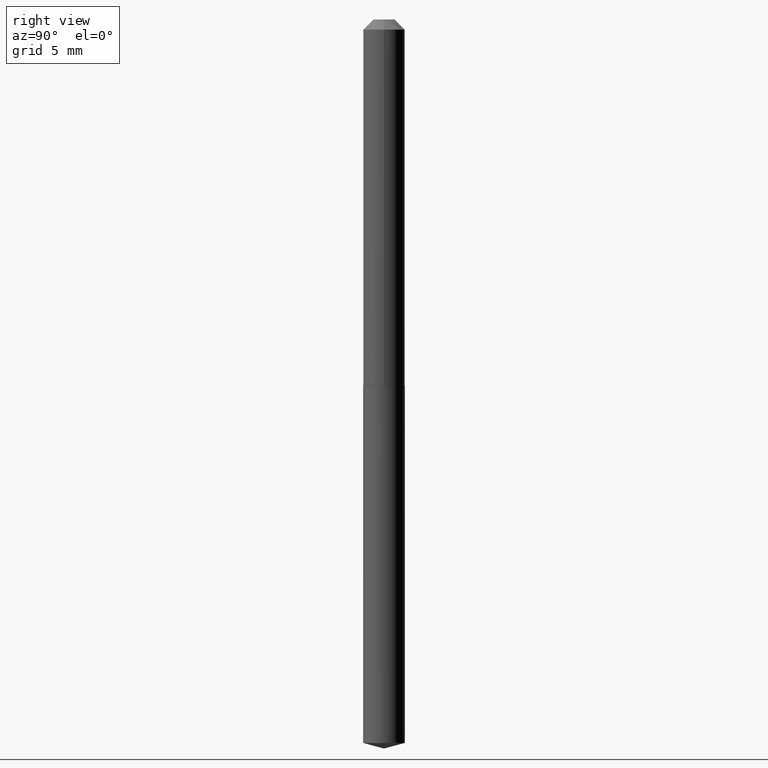
[diagram: clean part render]
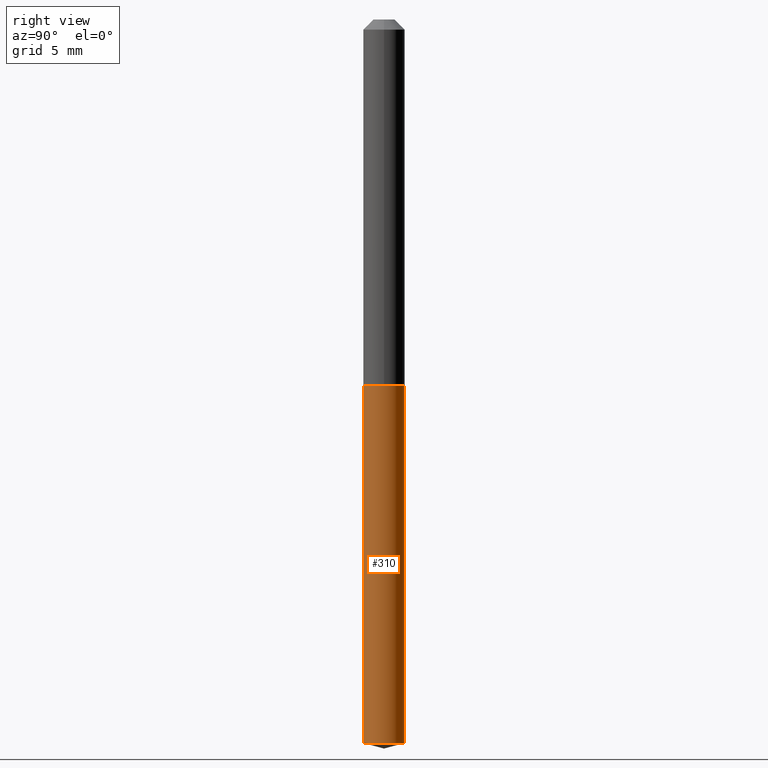
[diagram: same view with one face highlighted and labeled with its STEP entity id]
A machine part, right view. The second image highlights one B-rep face of the part: STEP entity #310.
In plain terms, the highlighted cylindrical surface (edge-blend (fillet) strip) has radius 1.632 mm, axis along (-0, 0, 1).
Its self-contained STEP definition (entity closure, byte-faithful):
#15 = AXIS2_PLACEMENT_3D ( 'NONE', #104, #167, #128 ) ;
#51 = DIRECTION ( 'NONE',  ( -2.445478788454027702E-29, 3.491467043665938443E-15, 1.000000000000000000 ) ) ;
#64 = DIRECTION ( 'NONE',  ( -2.445478788454027702E-29, 3.491467043665938443E-15, 1.000000000000000000 ) ) ;
#72 = CIRCLE ( 'NONE', #361, 0.06425000000000000155 ) ;
#80 = CARTESIAN_POINT ( 'NONE',  ( 4.565237077259187133E-16, 0.06424999999999217448, -2.232784264386301398 ) ) ;
#81 = AXIS2_PLACEMENT_3D ( 'NONE', #373, #160, #280 ) ;
#82 = DIRECTION ( 'NONE',  ( -6.982962677686265922E-15, -1.000000000000000000, 4.251903492084456561E-15 ) ) ;
#86 = ORIENTED_EDGE ( 'NONE', *, *, #276, .T. ) ;
#88 = ORIENTED_EDGE ( 'NONE', *, *, #292, .T. ) ;
#91 = CARTESIAN_POINT ( 'NONE',  ( -4.486553520412877630E-16, -0.06425000000000775924, -2.232784264386300954 ) ) ;
#99 = CYLINDRICAL_SURFACE ( 'NONE', #81, 0.06425000000000000155 ) ;
#100 = CARTESIAN_POINT ( 'NONE',  ( 5.460215292760186058E-29, -7.795708806828143374E-15, -2.232784264386301398 ) ) ;
#104 = CARTESIAN_POINT ( 'NONE',  ( 2.759711547779927161E-29, -3.940136690884490538E-15, -1.128500000000000059 ) ) ;
#128 = DIRECTION ( 'NONE',  ( -6.982962677686265922E-15, -1.000000000000000000, 4.251903492084456561E-15 ) ) ;
#134 = CIRCLE ( 'NONE', #15, 0.06425000000000000155 ) ;
#137 = LINE ( 'NONE', #363, #266 ) ;
#143 = VERTEX_POINT ( 'NONE', #91 ) ;
#160 = DIRECTION ( 'NONE',  ( -2.445478788454027702E-29, 3.491467043665938048E-15, 1.000000000000000000 ) ) ;
#167 = DIRECTION ( 'NONE',  ( -2.445478788454027702E-29, 3.491467043665938048E-15, 1.000000000000000000 ) ) ;
#170 = ORIENTED_EDGE ( 'NONE', *, *, #251, .F. ) ;
#196 = CARTESIAN_POINT ( 'NONE',  ( -4.486553520413150773E-16, -0.06425000000000394285, -1.128499999999999837 ) ) ;
#200 = LINE ( 'NONE', #321, #344 ) ;
#209 = EDGE_LOOP ( 'NONE', ( #86, #88, #170, #226 ) ) ;
#226 = ORIENTED_EDGE ( 'NONE', *, *, #386, .F. ) ;
#251 = EDGE_CURVE ( 'NONE', #347, #358, #134, .T. ) ;
#266 = VECTOR ( 'NONE', #64, 39.37007874015748143 ) ;
#276 = EDGE_CURVE ( 'NONE', #143, #324, #72, .T. ) ;
#280 = DIRECTION ( 'NONE',  ( -6.982962677686265922E-15, -1.000000000000000000, 4.251903492084456561E-15 ) ) ;
#287 = CARTESIAN_POINT ( 'NONE',  ( 4.565237077259191077E-16, 0.06424999999999606026, -1.128500000000000503 ) ) ;
#292 = EDGE_CURVE ( 'NONE', #324, #358, #200, .T. ) ;
#310 = ADVANCED_FACE ( 'NONE', ( #379 ), #99, .T. ) ;
#321 = CARTESIAN_POINT ( 'NONE',  ( 4.565237077258918920E-16, 0.06424999999999606026, -1.128500000000000503 ) ) ;
#324 = VERTEX_POINT ( 'NONE', #80 ) ;
#344 = VECTOR ( 'NONE', #51, 39.37007874015748143 ) ;
#346 = DIRECTION ( 'NONE',  ( -2.445478788454027702E-29, 3.491467043665938048E-15, 1.000000000000000000 ) ) ;
#347 = VERTEX_POINT ( 'NONE', #196 ) ;
#358 = VERTEX_POINT ( 'NONE', #287 ) ;
#361 = AXIS2_PLACEMENT_3D ( 'NONE', #100, #346, #82 ) ;
#363 = CARTESIAN_POINT ( 'NONE',  ( -4.486553520413150773E-16, -0.06425000000000394285, -1.128499999999999837 ) ) ;
#373 = CARTESIAN_POINT ( 'NONE',  ( 2.759711547779927161E-29, -3.940136690884490538E-15, -1.128500000000000059 ) ) ;
#379 = FACE_OUTER_BOUND ( 'NONE', #209, .T. ) ;
#386 = EDGE_CURVE ( 'NONE', #143, #347, #137, .T. ) ;